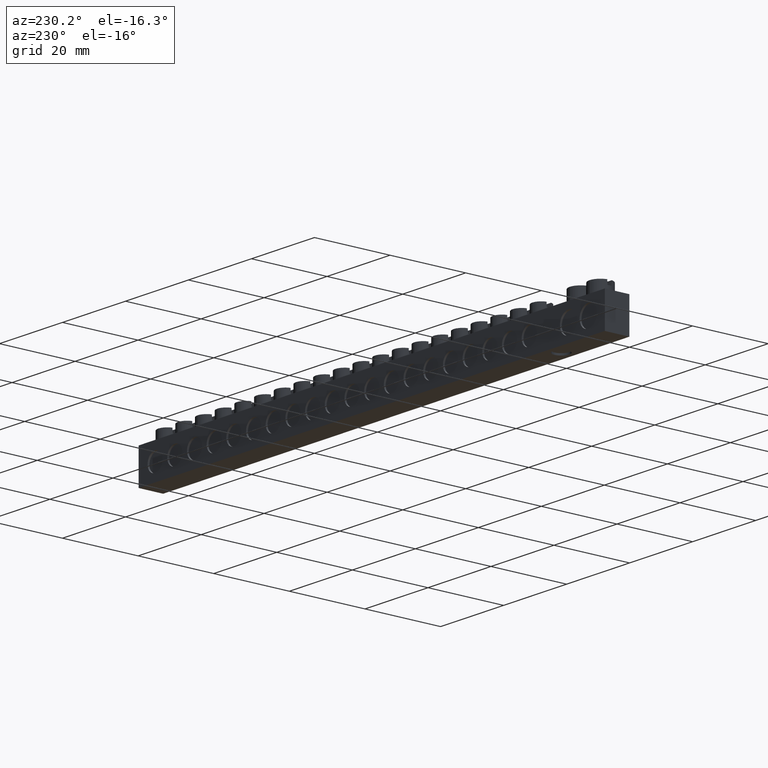
[diagram: clean part render]
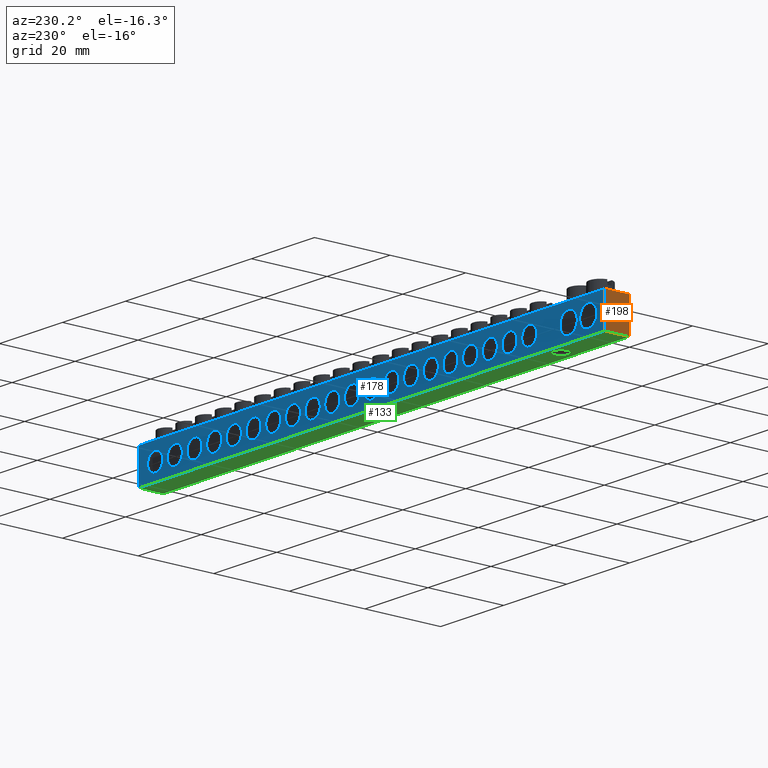
[diagram: same view with three faces highlighted in distinct colors, each labeled with its STEP entity id]
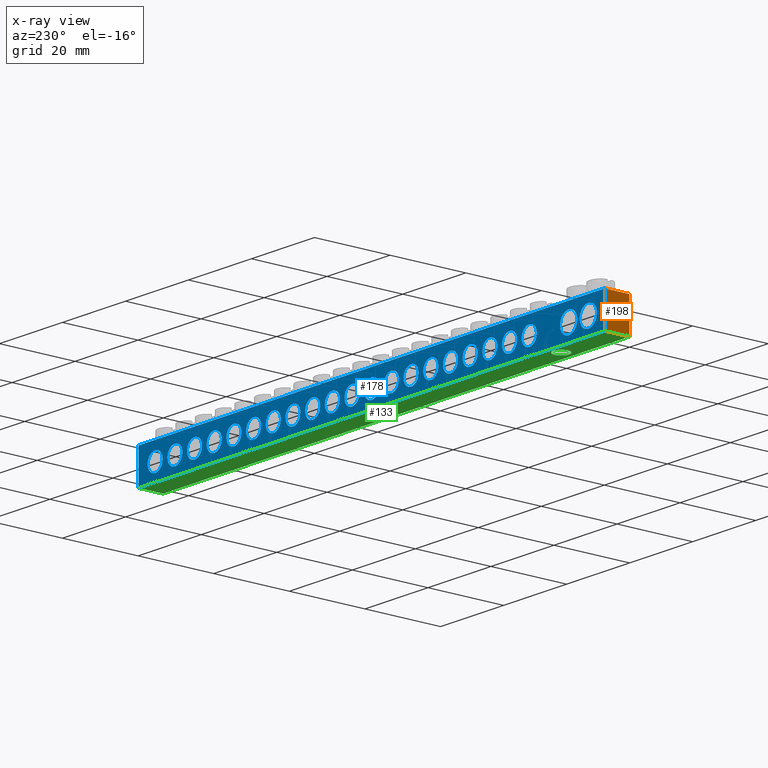
[diagram: x-ray of the same camera — body ghosted, the three highlighted faces saturated]
A machine part, auxiliary view with three faces highlighted in distinct colors.
The next image is the same camera in x-ray (body ghosted, the three faces saturated) — at least one of them is partly hidden behind the body in this view.
Their STEP definitions:

[orange] entity #198 — the highlighted planar face has unit normal (1, -0, 0).
#86 = EDGE_CURVE ( 'NONE', #12290, #12262, #11469, .T. ) ;
#137 = EDGE_CURVE ( 'NONE', #12290, #12310, #11507, .T. ) ;
#138 = EDGE_CURVE ( 'NONE', #12275, #12310, #11525, .T. ) ;
#139 = EDGE_CURVE ( 'NONE', #12275, #12262, #11503, .T. ) ;
#198 = ADVANCED_FACE ( 'NONE', ( #11855 ), #11931, .F. ) ;
#1559 = CARTESIAN_POINT ( 'NONE',  ( 0.05000000000000000300, 6.499999999999999100, 0.0000000000000000000 ) ) ;
#1586 = CARTESIAN_POINT ( 'NONE',  ( 0.05000000000000000300, 6.499999999999999100, 9.000000000000001800 ) ) ;
#1648 = CARTESIAN_POINT ( 'NONE',  ( 0.05000000000000000300, 0.0000000000000000000, 9.000000000000001800 ) ) ;
#1651 = CARTESIAN_POINT ( 'NONE',  ( 0.05000000000000000300, 0.0000000000000000000, 0.0000000000000000000 ) ) ;
#2633 = EDGE_LOOP ( 'NONE', ( #7815, #7874, #7864, #7794 ) ) ;
#7197 = AXIS2_PLACEMENT_3D ( 'NONE', #11928, #11885, #11891 ) ;
#7565 = VECTOR ( 'NONE', #11511, 1000.000000000000000 ) ;
#7580 = VECTOR ( 'NONE', #11458, 1000.000000000000000 ) ;
#7585 = VECTOR ( 'NONE', #11496, 1000.000000000000000 ) ;
#7589 = VECTOR ( 'NONE', #11498, 1000.000000000000000 ) ;
#7794 = ORIENTED_EDGE ( 'NONE', *, *, #86, .F. ) ;
#7815 = ORIENTED_EDGE ( 'NONE', *, *, #137, .T. ) ;
#7864 = ORIENTED_EDGE ( 'NONE', *, *, #139, .T. ) ;
#7874 = ORIENTED_EDGE ( 'NONE', *, *, #138, .F. ) ;
#11458 = DIRECTION ( 'NONE',  ( 0.0000000000000000000, 1.000000000000000000, 0.0000000000000000000 ) ) ;
#11469 = LINE ( 'NONE', #11479, #7580 ) ;
#11479 = CARTESIAN_POINT ( 'NONE',  ( 0.05000000000000000300, 0.0000000000000000000, 0.0000000000000000000 ) ) ;
#11481 = CARTESIAN_POINT ( 'NONE',  ( 0.05000000000000000300, 6.499999999999999100, 9.000000000000001800 ) ) ;
#11482 = CARTESIAN_POINT ( 'NONE',  ( 0.05000000000000000300, 6.499999999999999100, 9.000000000000001800 ) ) ;
#11496 = DIRECTION ( 'NONE',  ( 0.0000000000000000000, -1.000000000000000000, 0.0000000000000000000 ) ) ;
#11498 = DIRECTION ( 'NONE',  ( 0.0000000000000000000, 0.0000000000000000000, -1.000000000000000000 ) ) ;
#11503 = LINE ( 'NONE', #11482, #7589 ) ;
#11507 = LINE ( 'NONE', #11512, #7565 ) ;
#11511 = DIRECTION ( 'NONE',  ( 0.0000000000000000000, 0.0000000000000000000, 1.000000000000000000 ) ) ;
#11512 = CARTESIAN_POINT ( 'NONE',  ( 0.05000000000000000300, 0.0000000000000000000, 9.000000000000001800 ) ) ;
#11525 = LINE ( 'NONE', #11481, #7585 ) ;
#11855 = FACE_OUTER_BOUND ( 'NONE', #2633, .T. ) ;
#11885 = DIRECTION ( 'NONE',  ( 1.000000000000000000, -0.0000000000000000000, 0.0000000000000000000 ) ) ;
#11891 = DIRECTION ( 'NONE',  ( 0.0000000000000000000, 0.0000000000000000000, -1.000000000000000000 ) ) ;
#11928 = CARTESIAN_POINT ( 'NONE',  ( 0.05000000000000000300, 0.0000000000000000000, 9.000000000000001800 ) ) ;
#11931 = PLANE ( 'NONE',  #7197 ) ;
#12262 = VERTEX_POINT ( 'NONE', #1559 ) ;
#12275 = VERTEX_POINT ( 'NONE', #1586 ) ;
#12290 = VERTEX_POINT ( 'NONE', #1651 ) ;
#12310 = VERTEX_POINT ( 'NONE', #1648 ) ;

[blue] entity #178 — the highlighted planar face has unit normal (0, -1, 0).
#78 = EDGE_CURVE ( 'NONE', #12262, #12271, #11403, .T. ) ;
#128 = EDGE_CURVE ( 'NONE', #12281, #12275, #11464, .T. ) ;
#135 = EDGE_CURVE ( 'NONE', #12281, #12271, #11523, .T. ) ;
#139 = EDGE_CURVE ( 'NONE', #12275, #12262, #11503, .T. ) ;
#178 = ADVANCED_FACE ( 'NONE', ( #11723, #11728, #11702, #11743, #11686, #11726, #11722, #11694, #11740, #11707, #11724, #11725, #11741, #11687, #11733, #11734, #11695, #11718, #11704, #11697, #11742, #11706, #11716 ), #11689, .F. ) ;
#362 = CARTESIAN_POINT ( 'NONE',  ( 5.299999999999999800, 6.499999999999999100, 4.399999999999999500 ) ) ;
#395 = DIRECTION ( 'NONE',  ( 0.0000000000000000000, 1.000000000000000000, 0.0000000000000000000 ) ) ;
#396 = DIRECTION ( 'NONE',  ( 0.0000000000000000000, 1.000000000000000000, 0.0000000000000000000 ) ) ;
#409 = DIRECTION ( 'NONE',  ( 0.0000000000000000000, 1.000000000000000000, 0.0000000000000000000 ) ) ;
#410 = DIRECTION ( 'NONE',  ( 0.0000000000000000000, 0.0000000000000000000, -1.000000000000000000 ) ) ;
#414 = DIRECTION ( 'NONE',  ( 0.0000000000000000000, 0.0000000000000000000, -1.000000000000000000 ) ) ;
#417 = CARTESIAN_POINT ( 'NONE',  ( 117.8000000000000100, 6.500000000000000900, 4.399999999999940800 ) ) ;
#418 = DIRECTION ( 'NONE',  ( 0.0000000000000000000, 0.0000000000000000000, -1.000000000000000000 ) ) ;
#421 = CARTESIAN_POINT ( 'NONE',  ( 99.05000000000004000, 6.499999999999999100, 4.399999999999898200 ) ) ;
#426 = DIRECTION ( 'NONE',  ( 0.0000000000000000000, 0.0000000000000000000, -1.000000000000000000 ) ) ;
#431 = DIRECTION ( 'NONE',  ( 0.0000000000000000000, 1.000000000000000000, 0.0000000000000000000 ) ) ;
#434 = DIRECTION ( 'NONE',  ( 0.0000000000000000000, 0.0000000000000000000, -1.000000000000000000 ) ) ;
#441 = DIRECTION ( 'NONE',  ( 0.0000000000000000000, 1.000000000000000000, 0.0000000000000000000 ) ) ;
#445 = CARTESIAN_POINT ( 'NONE',  ( 86.55000000000005400, 6.499999999999999100, 4.399999999999868000 ) ) ;
#449 = DIRECTION ( 'NONE',  ( 0.0000000000000000000, 1.000000000000000000, 0.0000000000000000000 ) ) ;
#455 = DIRECTION ( 'NONE',  ( 0.0000000000000000000, 0.0000000000000000000, -1.000000000000000000 ) ) ;
#458 = CARTESIAN_POINT ( 'NONE',  ( 130.3000000000000400, 6.500000000000000900, 4.399999999999970200 ) ) ;
#460 = CARTESIAN_POINT ( 'NONE',  ( 92.80000000000005400, 6.499999999999999100, 4.399999999999883100 ) ) ;
#472 = CARTESIAN_POINT ( 'NONE',  ( 111.5500000000000300, 6.500000000000000900, 4.399999999999926600 ) ) ;
#473 = DIRECTION ( 'NONE',  ( 0.0000000000000000000, 0.0000000000000000000, -1.000000000000000000 ) ) ;
#481 = DIRECTION ( 'NONE',  ( 0.0000000000000000000, 1.000000000000000000, 0.0000000000000000000 ) ) ;
#501 = DIRECTION ( 'NONE',  ( 0.0000000000000000000, 1.000000000000000000, 0.0000000000000000000 ) ) ;
#502 = CARTESIAN_POINT ( 'NONE',  ( 142.7999999999999800, 6.500000000000000900, 4.399999999999999500 ) ) ;
#503 = DIRECTION ( 'NONE',  ( 0.0000000000000000000, 0.0000000000000000000, -1.000000000000000000 ) ) ;
#512 = DIRECTION ( 'NONE',  ( 0.0000000000000000000, 1.000000000000000000, 0.0000000000000000000 ) ) ;
#514 = DIRECTION ( 'NONE',  ( 0.0000000000000000000, 0.0000000000000000000, -1.000000000000000000 ) ) ;
#519 = CARTESIAN_POINT ( 'NONE',  ( 136.5500000000000100, 6.500000000000000900, 4.399999999999984400 ) ) ;
#523 = DIRECTION ( 'NONE',  ( 0.0000000000000000000, 0.0000000000000000000, -1.000000000000000000 ) ) ;
#532 = CARTESIAN_POINT ( 'NONE',  ( 11.55000000000000100, 6.499999999999999100, 4.399999999999999500 ) ) ;
#548 = DIRECTION ( 'NONE',  ( 0.0000000000000000000, 1.000000000000000000, 0.0000000000000000000 ) ) ;
#754 = DIRECTION ( 'NONE',  ( 0.0000000000000000000, 1.000000000000000000, 0.0000000000000000000 ) ) ;
#770 = DIRECTION ( 'NONE',  ( 0.0000000000000000000, 0.0000000000000000000, -1.000000000000000000 ) ) ;
#779 = CARTESIAN_POINT ( 'NONE',  ( 55.30000000000009700, 6.499999999999999100, 4.399999999999795200 ) ) ;
#788 = DIRECTION ( 'NONE',  ( 0.0000000000000000000, 0.0000000000000000000, -1.000000000000000000 ) ) ;
#792 = DIRECTION ( 'NONE',  ( 0.0000000000000000000, 1.000000000000000000, 0.0000000000000000000 ) ) ;
#793 = DIRECTION ( 'NONE',  ( 0.0000000000000000000, 1.000000000000000000, 0.0000000000000000000 ) ) ;
#794 = DIRECTION ( 'NONE',  ( 0.0000000000000000000, 0.0000000000000000000, -1.000000000000000000 ) ) ;
#796 = DIRECTION ( 'NONE',  ( 0.0000000000000000000, 1.000000000000000000, 0.0000000000000000000 ) ) ;
#798 = DIRECTION ( 'NONE',  ( 0.0000000000000000000, 1.000000000000000000, 0.0000000000000000000 ) ) ;
#799 = DIRECTION ( 'NONE',  ( 0.0000000000000000000, 0.0000000000000000000, -1.000000000000000000 ) ) ;
#801 = DIRECTION ( 'NONE',  ( 0.0000000000000000000, 0.0000000000000000000, -1.000000000000000000 ) ) ;
#802 = CARTESIAN_POINT ( 'NONE',  ( 86.55000000000005400, 6.499999999999999100, 4.399999999999868000 ) ) ;
#803 = CARTESIAN_POINT ( 'NONE',  ( 111.5500000000000300, 6.500000000000000900, 4.399999999999926600 ) ) ;
#806 = CARTESIAN_POINT ( 'NONE',  ( 80.30000000000006800, 6.499999999999999100, 4.399999999999853800 ) ) ;
#809 = DIRECTION ( 'NONE',  ( 0.0000000000000000000, 1.000000000000000000, 0.0000000000000000000 ) ) ;
#810 = CARTESIAN_POINT ( 'NONE',  ( 49.05000000000011100, 6.499999999999999100, 4.399999999999781900 ) ) ;
#815 = CARTESIAN_POINT ( 'NONE',  ( 117.8000000000000100, 6.500000000000000900, 4.399999999999940800 ) ) ;
#821 = DIRECTION ( 'NONE',  ( 0.0000000000000000000, 0.0000000000000000000, -1.000000000000000000 ) ) ;
#829 = CARTESIAN_POINT ( 'NONE',  ( 74.05000000000006800, 6.499999999999999100, 4.399999999999839600 ) ) ;
#833 = DIRECTION ( 'NONE',  ( 0.0000000000000000000, 1.000000000000000000, 0.0000000000000000000 ) ) ;
#834 = DIRECTION ( 'NONE',  ( 0.0000000000000000000, 0.0000000000000000000, -1.000000000000000000 ) ) ;
#835 = DIRECTION ( 'NONE',  ( 0.0000000000000000000, 1.000000000000000000, 0.0000000000000000000 ) ) ;
#840 = DIRECTION ( 'NONE',  ( 0.0000000000000000000, 0.0000000000000000000, -1.000000000000000000 ) ) ;
#843 = CARTESIAN_POINT ( 'NONE',  ( 99.05000000000004000, 6.499999999999999100, 4.399999999999898200 ) ) ;
#845 = CARTESIAN_POINT ( 'NONE',  ( 24.05000000000013900, 6.499999999999999100, 4.399999999999723200 ) ) ;
#848 = CARTESIAN_POINT ( 'NONE',  ( 30.30000000000013200, 6.499999999999999100, 4.399999999999737500 ) ) ;
#850 = DIRECTION ( 'NONE',  ( 0.0000000000000000000, 1.000000000000000000, 0.0000000000000000000 ) ) ;
#855 = DIRECTION ( 'NONE',  ( 0.0000000000000000000, 0.0000000000000000000, -1.000000000000000000 ) ) ;
#859 = DIRECTION ( 'NONE',  ( 0.0000000000000000000, 0.0000000000000000000, -1.000000000000000000 ) ) ;
#861 = DIRECTION ( 'NONE',  ( 0.0000000000000000000, 1.000000000000000000, 0.0000000000000000000 ) ) ;
#862 = DIRECTION ( 'NONE',  ( 0.0000000000000000000, 0.0000000000000000000, -1.000000000000000000 ) ) ;
#868 = CARTESIAN_POINT ( 'NONE',  ( 42.80000000000011800, 6.499999999999999100, 4.399999999999766800 ) ) ;
#880 = DIRECTION ( 'NONE',  ( 0.0000000000000000000, 1.000000000000000000, 0.0000000000000000000 ) ) ;
#881 = DIRECTION ( 'NONE',  ( 0.0000000000000000000, 1.000000000000000000, 0.0000000000000000000 ) ) ;
#886 = CARTESIAN_POINT ( 'NONE',  ( 61.55000000000009000, 6.499999999999999100, 4.399999999999810300 ) ) ;
#889 = DIRECTION ( 'NONE',  ( 0.0000000000000000000, 1.000000000000000000, 0.0000000000000000000 ) ) ;
#891 = DIRECTION ( 'NONE',  ( 0.0000000000000000000, 0.0000000000000000000, -1.000000000000000000 ) ) ;
#895 = CARTESIAN_POINT ( 'NONE',  ( 105.3000000000000300, 6.499999999999999100, 4.399999999999911500 ) ) ;
#896 = DIRECTION ( 'NONE',  ( 0.0000000000000000000, 0.0000000000000000000, -1.000000000000000000 ) ) ;
#904 = DIRECTION ( 'NONE',  ( 0.0000000000000000000, 1.000000000000000000, 0.0000000000000000000 ) ) ;
#908 = CARTESIAN_POINT ( 'NONE',  ( 36.55000000000012500, 6.499999999999999100, 4.399999999999753400 ) ) ;
#921 = DIRECTION ( 'NONE',  ( 0.0000000000000000000, 0.0000000000000000000, -1.000000000000000000 ) ) ;
#923 = CARTESIAN_POINT ( 'NONE',  ( 92.80000000000005400, 6.499999999999999100, 4.399999999999883100 ) ) ;
#945 = CARTESIAN_POINT ( 'NONE',  ( 67.80000000000008200, 6.499999999999999100, 4.399999999999825400 ) ) ;
#949 = DIRECTION ( 'NONE',  ( 0.0000000000000000000, 0.0000000000000000000, -1.000000000000000000 ) ) ;
#958 = DIRECTION ( 'NONE',  ( 0.0000000000000000000, 1.000000000000000000, 0.0000000000000000000 ) ) ;
#961 = CARTESIAN_POINT ( 'NONE',  ( 124.0500000000000100, 6.500000000000000900, 4.399999999999955900 ) ) ;
#962 = DIRECTION ( 'NONE',  ( 0.0000000000000000000, 1.000000000000000000, 0.0000000000000000000 ) ) ;
#969 = DIRECTION ( 'NONE',  ( 0.0000000000000000000, 1.000000000000000000, 0.0000000000000000000 ) ) ;
#971 = DIRECTION ( 'NONE',  ( 0.0000000000000000000, 0.0000000000000000000, -1.000000000000000000 ) ) ;
#975 = DIRECTION ( 'NONE',  ( 0.0000000000000000000, 0.0000000000000000000, -1.000000000000000000 ) ) ;
#989 = CARTESIAN_POINT ( 'NONE',  ( 136.5500000000000100, 6.500000000000000900, 4.399999999999984400 ) ) ;
#991 = DIRECTION ( 'NONE',  ( 0.0000000000000000000, 0.0000000000000000000, -1.000000000000000000 ) ) ;
#994 = DIRECTION ( 'NONE',  ( 0.0000000000000000000, 1.000000000000000000, 0.0000000000000000000 ) ) ;
#1009 = DIRECTION ( 'NONE',  ( 0.0000000000000000000, 1.000000000000000000, 0.0000000000000000000 ) ) ;
#1011 = CARTESIAN_POINT ( 'NONE',  ( 130.3000000000000400, 6.500000000000000900, 4.399999999999970200 ) ) ;
#1012 = DIRECTION ( 'NONE',  ( 0.0000000000000000000, 1.000000000000000000, 0.0000000000000000000 ) ) ;
#1015 = DIRECTION ( 'NONE',  ( 0.0000000000000000000, 0.0000000000000000000, -1.000000000000000000 ) ) ;
#1021 = CARTESIAN_POINT ( 'NONE',  ( 5.299999999999999800, 6.499999999999999100, 4.399999999999999500 ) ) ;
#1038 = DIRECTION ( 'NONE',  ( 0.0000000000000000000, 0.0000000000000000000, -1.000000000000000000 ) ) ;
#1082 = CARTESIAN_POINT ( 'NONE',  ( 142.7999999999999800, 6.500000000000000900, 4.399999999999999500 ) ) ;
#1096 = DIRECTION ( 'NONE',  ( 0.0000000000000000000, 1.000000000000000000, 0.0000000000000000000 ) ) ;
#1104 = CARTESIAN_POINT ( 'NONE',  ( 11.55000000000000100, 6.499999999999999100, 4.399999999999999500 ) ) ;
#1105 = DIRECTION ( 'NONE',  ( 0.0000000000000000000, 0.0000000000000000000, -1.000000000000000000 ) ) ;
#1135 = DIRECTION ( 'NONE',  ( 0.0000000000000000000, 1.000000000000000000, 0.0000000000000000000 ) ) ;
#1157 = DIRECTION ( 'NONE',  ( 0.0000000000000000000, 0.0000000000000000000, -1.000000000000000000 ) ) ;
#1555 = CARTESIAN_POINT ( 'NONE',  ( 148.0500000000000100, 6.499999999999999100, 0.0000000000000000000 ) ) ;
#1559 = CARTESIAN_POINT ( 'NONE',  ( 0.05000000000000000300, 6.499999999999999100, 0.0000000000000000000 ) ) ;
#1565 = CARTESIAN_POINT ( 'NONE',  ( 148.0500000000000100, 6.500000000000000000, 9.000000000000001800 ) ) ;
#1586 = CARTESIAN_POINT ( 'NONE',  ( 0.05000000000000000300, 6.499999999999999100, 9.000000000000001800 ) ) ;
#2621 = EDGE_LOOP ( 'NONE', ( #7833, #7820 ) ) ;
#2623 = EDGE_LOOP ( 'NONE', ( #7822, #7849 ) ) ;
#2626 = EDGE_LOOP ( 'NONE', ( #7870, #7858, #7816, #7795 ) ) ;
#2632 = EDGE_LOOP ( 'NONE', ( #7828, #7826 ) ) ;
#2649 = EDGE_LOOP ( 'NONE', ( #7807, #7837 ) ) ;
#2670 = EDGE_LOOP ( 'NONE', ( #7752, #7821 ) ) ;
#2674 = EDGE_LOOP ( 'NONE', ( #7772, #7838 ) ) ;
#2685 = EDGE_LOOP ( 'NONE', ( #7787, #7817 ) ) ;
#2689 = EDGE_LOOP ( 'NONE', ( #7924, #7901 ) ) ;
#2690 = EDGE_LOOP ( 'NONE', ( #7908, #7931 ) ) ;
#2695 = EDGE_LOOP ( 'NONE', ( #7919, #7918 ) ) ;
#2699 = EDGE_LOOP ( 'NONE', ( #7836, #7819 ) ) ;
#2700 = EDGE_LOOP ( 'NONE', ( #7862, #7780 ) ) ;
#2701 = EDGE_LOOP ( 'NONE', ( #7886, #7881 ) ) ;
#2703 = EDGE_LOOP ( 'NONE', ( #7907, #7904 ) ) ;
#2717 = EDGE_LOOP ( 'NONE', ( #7859, #7786 ) ) ;
#2727 = EDGE_LOOP ( 'NONE', ( #7808, #7872 ) ) ;
#2728 = EDGE_LOOP ( 'NONE', ( #7823, #7867 ) ) ;
#2749 = EDGE_LOOP ( 'NONE', ( #7754, #7869 ) ) ;
#2751 = EDGE_LOOP ( 'NONE', ( #7871, #7855 ) ) ;
#2757 = EDGE_LOOP ( 'NONE', ( #7773, #7865 ) ) ;
#2758 = EDGE_LOOP ( 'NONE', ( #7876, #7774 ) ) ;
#2777 = EDGE_LOOP ( 'NONE', ( #7929, #7906 ) ) ;
#5112 = AXIS2_PLACEMENT_3D ( 'NONE', #1082, #1096, #1105 ) ;
#5128 = CIRCLE ( 'NONE', #5153, 2.400000000000002600 ) ;
#5142 = CIRCLE ( 'NONE', #5143, 2.749999999999997300 ) ;
#5143 = AXIS2_PLACEMENT_3D ( 'NONE', #1021, #1009, #991 ) ;
#5150 = CIRCLE ( 'NONE', #5151, 2.400000000000002600 ) ;
#5151 = AXIS2_PLACEMENT_3D ( 'NONE', #989, #994, #1015 ) ;
#5153 = AXIS2_PLACEMENT_3D ( 'NONE', #1011, #1012, #1038 ) ;
#5157 = CIRCLE ( 'NONE', #5112, 2.400000000000002600 ) ;
#5173 = AXIS2_PLACEMENT_3D ( 'NONE', #1104, #1135, #1157 ) ;
#5202 = CIRCLE ( 'NONE', #5173, 2.749999999999998200 ) ;
#6003 = CIRCLE ( 'NONE', #6021, 2.400000000000000800 ) ;
#6007 = CIRCLE ( 'NONE', #6032, 2.400000000000000800 ) ;
#6011 = AXIS2_PLACEMENT_3D ( 'NONE', #908, #904, #921 ) ;
#6021 = AXIS2_PLACEMENT_3D ( 'NONE', #868, #880, #891 ) ;
#6022 = AXIS2_PLACEMENT_3D ( 'NONE', #886, #889, #896 ) ;
#6032 = AXIS2_PLACEMENT_3D ( 'NONE', #895, #881, #862 ) ;
#6033 = CIRCLE ( 'NONE', #6058, 2.400000000000000800 ) ;
#6034 = CIRCLE ( 'NONE', #6057, 2.400000000000000800 ) ;
#6042 = CIRCLE ( 'NONE', #6022, 2.400000000000000800 ) ;
#6049 = CIRCLE ( 'NONE', #6011, 2.400000000000000800 ) ;
#6057 = AXIS2_PLACEMENT_3D ( 'NONE', #923, #958, #949 ) ;
#6058 = AXIS2_PLACEMENT_3D ( 'NONE', #945, #962, #975 ) ;
#6202 = CIRCLE ( 'NONE', #6240, 2.399999999999987500 ) ;
#6231 = AXIS2_PLACEMENT_3D ( 'NONE', #421, #395, #418 ) ;
#6240 = AXIS2_PLACEMENT_3D ( 'NONE', #961, #969, #971 ) ;
#6244 = CIRCLE ( 'NONE', #6256, 2.400000000000002600 ) ;
#6246 = AXIS2_PLACEMENT_3D ( 'NONE', #362, #409, #410 ) ;
#6248 = CIRCLE ( 'NONE', #6231, 2.400000000000000800 ) ;
#6255 = AXIS2_PLACEMENT_3D ( 'NONE', #417, #396, #414 ) ;
#6256 = AXIS2_PLACEMENT_3D ( 'NONE', #458, #441, #455 ) ;
#6265 = CIRCLE ( 'NONE', #6246, 2.749999999999997300 ) ;
#6275 = CIRCLE ( 'NONE', #6255, 2.400000000000000800 ) ;
#6286 = AXIS2_PLACEMENT_3D ( 'NONE', #460, #449, #426 ) ;
#6288 = AXIS2_PLACEMENT_3D ( 'NONE', #502, #481, #503 ) ;
#6295 = CIRCLE ( 'NONE', #6321, 2.400000000000000800 ) ;
#6312 = AXIS2_PLACEMENT_3D ( 'NONE', #519, #512, #514 ) ;
#6315 = AXIS2_PLACEMENT_3D ( 'NONE', #532, #548, #523 ) ;
#6319 = CIRCLE ( 'NONE', #6336, 2.400000000000000800 ) ;
#6321 = AXIS2_PLACEMENT_3D ( 'NONE', #445, #431, #434 ) ;
#6323 = CIRCLE ( 'NONE', #6315, 2.749999999999998200 ) ;
#6335 = CIRCLE ( 'NONE', #6288, 2.400000000000002600 ) ;
#6336 = AXIS2_PLACEMENT_3D ( 'NONE', #472, #501, #473 ) ;
#6338 = CIRCLE ( 'NONE', #6286, 2.400000000000000800 ) ;
#6339 = CIRCLE ( 'NONE', #6312, 2.400000000000002600 ) ;
#6472 = CIRCLE ( 'NONE', #6529, 2.400000000000000800 ) ;
#6473 = AXIS2_PLACEMENT_3D ( 'NONE', #848, #850, #859 ) ;
#6478 = AXIS2_PLACEMENT_3D ( 'NONE', #843, #861, #855 ) ;
#6481 = CIRCLE ( 'NONE', #6503, 2.400000000000000800 ) ;
#6487 = AXIS2_PLACEMENT_3D ( 'NONE', #806, #792, #821 ) ;
#6497 = AXIS2_PLACEMENT_3D ( 'NONE', #815, #793, #794 ) ;
#6498 = CIRCLE ( 'NONE', #6501, 2.400000000000000800 ) ;
#6501 = AXIS2_PLACEMENT_3D ( 'NONE', #803, #809, #788 ) ;
#6503 = AXIS2_PLACEMENT_3D ( 'NONE', #810, #796, #801 ) ;
#6507 = CIRCLE ( 'NONE', #6520, 2.400000000000001200 ) ;
#6512 = AXIS2_PLACEMENT_3D ( 'NONE', #802, #798, #799 ) ;
#6513 = CIRCLE ( 'NONE', #6497, 2.400000000000000800 ) ;
#6514 = CIRCLE ( 'NONE', #6478, 2.400000000000000800 ) ;
#6520 = AXIS2_PLACEMENT_3D ( 'NONE', #845, #833, #834 ) ;
#6526 = CIRCLE ( 'NONE', #6512, 2.400000000000000800 ) ;
#6527 = CIRCLE ( 'NONE', #6487, 2.400000000000000800 ) ;
#6528 = CIRCLE ( 'NONE', #6473, 2.400000000000000800 ) ;
#6529 = AXIS2_PLACEMENT_3D ( 'NONE', #779, #754, #770 ) ;
#6532 = CIRCLE ( 'NONE', #6533, 2.400000000000000800 ) ;
#6533 = AXIS2_PLACEMENT_3D ( 'NONE', #829, #835, #840 ) ;
#6714 = EDGE_CURVE ( 'NONE', #8602, #8557, #13714, .T. ) ;
#6967 = DIRECTION ( 'NONE',  ( 0.0000000000000000000, 0.0000000000000000000, -1.000000000000000000 ) ) ;
#6985 = CARTESIAN_POINT ( 'NONE',  ( 24.05000000000013900, 6.499999999999999100, 4.399999999999723200 ) ) ;
#6995 = DIRECTION ( 'NONE',  ( 0.0000000000000000000, 1.000000000000000000, 0.0000000000000000000 ) ) ;
#7173 = AXIS2_PLACEMENT_3D ( 'NONE', #11708, #11696, #11729 ) ;
#7529 = VECTOR ( 'NONE', #11406, 1000.000000000000000 ) ;
#7567 = VECTOR ( 'NONE', #11522, 1000.000000000000000 ) ;
#7587 = VECTOR ( 'NONE', #11505, 1000.000000000000000 ) ;
#7589 = VECTOR ( 'NONE', #11498, 1000.000000000000000 ) ;
#7667 = EDGE_CURVE ( 'NONE', #8586, #8637, #13784, .T. ) ;
#7752 = ORIENTED_EDGE ( 'NONE', *, *, #9648, .F. ) ;
#7754 = ORIENTED_EDGE ( 'NONE', *, *, #10100, .F. ) ;
#7772 = ORIENTED_EDGE ( 'NONE', *, *, #10110, .F. ) ;
#7773 = ORIENTED_EDGE ( 'NONE', *, *, #10096, .F. ) ;
#7774 = ORIENTED_EDGE ( 'NONE', *, *, #10214, .F. ) ;
#7780 = ORIENTED_EDGE ( 'NONE', *, *, #10231, .F. ) ;
#7786 = ORIENTED_EDGE ( 'NONE', *, *, #10262, .F. ) ;
#7787 = ORIENTED_EDGE ( 'NONE', *, *, #9688, .F. ) ;
#7795 = ORIENTED_EDGE ( 'NONE', *, *, #78, .F. ) ;
#7807 = ORIENTED_EDGE ( 'NONE', *, *, #10090, .F. ) ;
#7808 = ORIENTED_EDGE ( 'NONE', *, *, #10127, .F. ) ;
#7816 = ORIENTED_EDGE ( 'NONE', *, *, #135, .T. ) ;
#7817 = ORIENTED_EDGE ( 'NONE', *, *, #10245, .F. ) ;
#7819 = ORIENTED_EDGE ( 'NONE', *, *, #10222, .F. ) ;
#7820 = ORIENTED_EDGE ( 'NONE', *, *, #10318, .F. ) ;
#7821 = ORIENTED_EDGE ( 'NONE', *, *, #10236, .F. ) ;
#7822 = ORIENTED_EDGE ( 'NONE', *, *, #10109, .F. ) ;
#7823 = ORIENTED_EDGE ( 'NONE', *, *, #9679, .F. ) ;
#7826 = ORIENTED_EDGE ( 'NONE', *, *, #10279, .F. ) ;
#7828 = ORIENTED_EDGE ( 'NONE', *, *, #10074, .F. ) ;
#7833 = ORIENTED_EDGE ( 'NONE', *, *, #10124, .F. ) ;
#7836 = ORIENTED_EDGE ( 'NONE', *, *, #10075, .F. ) ;
#7837 = ORIENTED_EDGE ( 'NONE', *, *, #10289, .F. ) ;
#7838 = ORIENTED_EDGE ( 'NONE', *, *, #10220, .F. ) ;
#7849 = ORIENTED_EDGE ( 'NONE', *, *, #10312, .F. ) ;
#7855 = ORIENTED_EDGE ( 'NONE', *, *, #10227, .F. ) ;
#7858 = ORIENTED_EDGE ( 'NONE', *, *, #128, .F. ) ;
#7859 = ORIENTED_EDGE ( 'NONE', *, *, #9686, .F. ) ;
#7862 = ORIENTED_EDGE ( 'NONE', *, *, #9638, .F. ) ;
#7865 = ORIENTED_EDGE ( 'NONE', *, *, #10261, .F. ) ;
#7867 = ORIENTED_EDGE ( 'NONE', *, *, #10273, .F. ) ;
#7869 = ORIENTED_EDGE ( 'NONE', *, *, #10216, .F. ) ;
#7870 = ORIENTED_EDGE ( 'NONE', *, *, #139, .F. ) ;
#7871 = ORIENTED_EDGE ( 'NONE', *, *, #10078, .F. ) ;
#7872 = ORIENTED_EDGE ( 'NONE', *, *, #10281, .F. ) ;
#7876 = ORIENTED_EDGE ( 'NONE', *, *, #9642, .F. ) ;
#7881 = ORIENTED_EDGE ( 'NONE', *, *, #10224, .F. ) ;
#7886 = ORIENTED_EDGE ( 'NONE', *, *, #6714, .F. ) ;
#7901 = ORIENTED_EDGE ( 'NONE', *, *, #10229, .F. ) ;
#7904 = ORIENTED_EDGE ( 'NONE', *, *, #10237, .F. ) ;
#7906 = ORIENTED_EDGE ( 'NONE', *, *, #10206, .F. ) ;
#7907 = ORIENTED_EDGE ( 'NONE', *, *, #9643, .F. ) ;
#7908 = ORIENTED_EDGE ( 'NONE', *, *, #9680, .F. ) ;
#7918 = ORIENTED_EDGE ( 'NONE', *, *, #10211, .F. ) ;
#7919 = ORIENTED_EDGE ( 'NONE', *, *, #9651, .F. ) ;
#7924 = ORIENTED_EDGE ( 'NONE', *, *, #7667, .F. ) ;
#7929 = ORIENTED_EDGE ( 'NONE', *, *, #9630, .F. ) ;
#7931 = ORIENTED_EDGE ( 'NONE', *, *, #10253, .F. ) ;
#8424 = VERTEX_POINT ( 'NONE', #10629 ) ;
#8455 = VERTEX_POINT ( 'NONE', #10661 ) ;
#8467 = VERTEX_POINT ( 'NONE', #10656 ) ;
#8469 = VERTEX_POINT ( 'NONE', #10666 ) ;
#8478 = VERTEX_POINT ( 'NONE', #10676 ) ;
#8480 = VERTEX_POINT ( 'NONE', #10691 ) ;
#8481 = VERTEX_POINT ( 'NONE', #10703 ) ;
#8484 = VERTEX_POINT ( 'NONE', #10655 ) ;
#8486 = VERTEX_POINT ( 'NONE', #10680 ) ;
#8488 = VERTEX_POINT ( 'NONE', #10696 ) ;
#8489 = VERTEX_POINT ( 'NONE', #10705 ) ;
#8491 = VERTEX_POINT ( 'NONE', #10664 ) ;
#8493 = VERTEX_POINT ( 'NONE', #10697 ) ;
#8494 = VERTEX_POINT ( 'NONE', #10668 ) ;
#8497 = VERTEX_POINT ( 'NONE', #10699 ) ;
#8498 = VERTEX_POINT ( 'NONE', #10677 ) ;
#8505 = VERTEX_POINT ( 'NONE', #10719 ) ;
#8513 = VERTEX_POINT ( 'NONE', #10718 ) ;
#8520 = VERTEX_POINT ( 'NONE', #10752 ) ;
#8523 = VERTEX_POINT ( 'NONE', #10764 ) ;
#8526 = VERTEX_POINT ( 'NONE', #10755 ) ;
#8527 = VERTEX_POINT ( 'NONE', #10730 ) ;
#8529 = VERTEX_POINT ( 'NONE', #10748 ) ;
#8530 = VERTEX_POINT ( 'NONE', #10743 ) ;
#8534 = VERTEX_POINT ( 'NONE', #10756 ) ;
#8537 = VERTEX_POINT ( 'NONE', #10765 ) ;
#8542 = VERTEX_POINT ( 'NONE', #10716 ) ;
#8548 = VERTEX_POINT ( 'NONE', #10710 ) ;
#8549 = VERTEX_POINT ( 'NONE', #10717 ) ;
#8553 = VERTEX_POINT ( 'NONE', #10726 ) ;
#8556 = VERTEX_POINT ( 'NONE', #10733 ) ;
#8557 = VERTEX_POINT ( 'NONE', #10734 ) ;
#8563 = VERTEX_POINT ( 'NONE', #10740 ) ;
#8564 = VERTEX_POINT ( 'NONE', #10741 ) ;
#8568 = VERTEX_POINT ( 'NONE', #10790 ) ;
#8569 = VERTEX_POINT ( 'NONE', #10404 ) ;
#8571 = VERTEX_POINT ( 'NONE', #10433 ) ;
#8572 = VERTEX_POINT ( 'NONE', #9371 ) ;
#8575 = VERTEX_POINT ( 'NONE', #9372 ) ;
#8577 = VERTEX_POINT ( 'NONE', #9353 ) ;
#8578 = VERTEX_POINT ( 'NONE', #9354 ) ;
#8586 = VERTEX_POINT ( 'NONE', #9359 ) ;
#8602 = VERTEX_POINT ( 'NONE', #9394 ) ;
#8637 = VERTEX_POINT ( 'NONE', #9382 ) ;
#9179 = DIRECTION ( 'NONE',  ( 0.0000000000000000000, 1.000000000000000000, 0.0000000000000000000 ) ) ;
#9180 = DIRECTION ( 'NONE',  ( 0.0000000000000000000, 0.0000000000000000000, -1.000000000000000000 ) ) ;
#9186 = CARTESIAN_POINT ( 'NONE',  ( 124.0500000000000100, 6.500000000000000900, 4.399999999999955900 ) ) ;
#9187 = DIRECTION ( 'NONE',  ( 0.0000000000000000000, 0.0000000000000000000, -1.000000000000000000 ) ) ;
#9192 = DIRECTION ( 'NONE',  ( 0.0000000000000000000, 1.000000000000000000, 0.0000000000000000000 ) ) ;
#9196 = CARTESIAN_POINT ( 'NONE',  ( 36.55000000000012500, 6.499999999999999100, 4.399999999999753400 ) ) ;
#9214 = DIRECTION ( 'NONE',  ( 0.0000000000000000000, 1.000000000000000000, 0.0000000000000000000 ) ) ;
#9217 = DIRECTION ( 'NONE',  ( 0.0000000000000000000, 0.0000000000000000000, -1.000000000000000000 ) ) ;
#9229 = DIRECTION ( 'NONE',  ( 0.0000000000000000000, 0.0000000000000000000, -1.000000000000000000 ) ) ;
#9233 = CARTESIAN_POINT ( 'NONE',  ( 67.80000000000008200, 6.499999999999999100, 4.399999999999825400 ) ) ;
#9240 = DIRECTION ( 'NONE',  ( 0.0000000000000000000, 1.000000000000000000, 0.0000000000000000000 ) ) ;
#9255 = CARTESIAN_POINT ( 'NONE',  ( 61.55000000000009000, 6.499999999999999100, 4.399999999999810300 ) ) ;
#9353 = CARTESIAN_POINT ( 'NONE',  ( 99.05000000000004000, 6.499999999999999100, 1.999999999999897200 ) ) ;
#9354 = CARTESIAN_POINT ( 'NONE',  ( 80.30000000000006800, 6.499999999999999100, 6.799999999999855000 ) ) ;
#9359 = CARTESIAN_POINT ( 'NONE',  ( 30.30000000000013200, 6.499999999999999100, 1.999999999999736900 ) ) ;
#9371 = CARTESIAN_POINT ( 'NONE',  ( 49.05000000000011100, 6.499999999999999100, 6.799999999999782200 ) ) ;
#9372 = CARTESIAN_POINT ( 'NONE',  ( 86.55000000000005400, 6.499999999999999100, 6.799999999999868400 ) ) ;
#9382 = CARTESIAN_POINT ( 'NONE',  ( 30.30000000000013200, 6.499999999999999100, 6.799999999999738700 ) ) ;
#9394 = CARTESIAN_POINT ( 'NONE',  ( 24.05000000000013900, 6.499999999999999100, 1.999999999999722400 ) ) ;
#9494 = DIRECTION ( 'NONE',  ( 0.0000000000000000000, 0.0000000000000000000, -1.000000000000000000 ) ) ;
#9496 = DIRECTION ( 'NONE',  ( 0.0000000000000000000, 1.000000000000000000, 0.0000000000000000000 ) ) ;
#9504 = CARTESIAN_POINT ( 'NONE',  ( 55.30000000000009700, 6.499999999999999100, 4.399999999999795200 ) ) ;
#9550 = CARTESIAN_POINT ( 'NONE',  ( 105.3000000000000300, 6.499999999999999100, 4.399999999999911500 ) ) ;
#9552 = DIRECTION ( 'NONE',  ( 0.0000000000000000000, 1.000000000000000000, 0.0000000000000000000 ) ) ;
#9554 = DIRECTION ( 'NONE',  ( 0.0000000000000000000, 0.0000000000000000000, -1.000000000000000000 ) ) ;
#9556 = DIRECTION ( 'NONE',  ( 0.0000000000000000000, 0.0000000000000000000, -1.000000000000000000 ) ) ;
#9560 = CARTESIAN_POINT ( 'NONE',  ( 42.80000000000011800, 6.499999999999999100, 4.399999999999766800 ) ) ;
#9567 = CARTESIAN_POINT ( 'NONE',  ( 80.30000000000006800, 6.499999999999999100, 4.399999999999853800 ) ) ;
#9572 = DIRECTION ( 'NONE',  ( 0.0000000000000000000, 0.0000000000000000000, -1.000000000000000000 ) ) ;
#9576 = DIRECTION ( 'NONE',  ( 0.0000000000000000000, 1.000000000000000000, 0.0000000000000000000 ) ) ;
#9578 = DIRECTION ( 'NONE',  ( 0.0000000000000000000, 1.000000000000000000, 0.0000000000000000000 ) ) ;
#9579 = CARTESIAN_POINT ( 'NONE',  ( 74.05000000000006800, 6.499999999999999100, 4.399999999999839600 ) ) ;
#9583 = DIRECTION ( 'NONE',  ( 0.0000000000000000000, 1.000000000000000000, 0.0000000000000000000 ) ) ;
#9589 = DIRECTION ( 'NONE',  ( 0.0000000000000000000, 0.0000000000000000000, -1.000000000000000000 ) ) ;
#9602 = CARTESIAN_POINT ( 'NONE',  ( 49.05000000000011100, 6.499999999999999100, 4.399999999999781900 ) ) ;
#9607 = DIRECTION ( 'NONE',  ( 0.0000000000000000000, 1.000000000000000000, 0.0000000000000000000 ) ) ;
#9612 = DIRECTION ( 'NONE',  ( 0.0000000000000000000, 0.0000000000000000000, -1.000000000000000000 ) ) ;
#9630 = EDGE_CURVE ( 'NONE', #8526, #8523, #13878, .T. ) ;
#9638 = EDGE_CURVE ( 'NONE', #8497, #8520, #13875, .T. ) ;
#9642 = EDGE_CURVE ( 'NONE', #8537, #8578, #13902, .T. ) ;
#9643 = EDGE_CURVE ( 'NONE', #8491, #8542, #13916, .T. ) ;
#9648 = EDGE_CURVE ( 'NONE', #8569, #8548, #13880, .T. ) ;
#9651 = EDGE_CURVE ( 'NONE', #8481, #8572, #13879, .T. ) ;
#9679 = EDGE_CURVE ( 'NONE', #8493, #8489, #13934, .T. ) ;
#9680 = EDGE_CURVE ( 'NONE', #8484, #8553, #13979, .T. ) ;
#9686 = EDGE_CURVE ( 'NONE', #8469, #8530, #13981, .T. ) ;
#9688 = EDGE_CURVE ( 'NONE', #8527, #8563, #13986, .T. ) ;
#10074 = EDGE_CURVE ( 'NONE', #8424, #8467, #6265, .T. ) ;
#10075 = EDGE_CURVE ( 'NONE', #8564, #8488, #6275, .T. ) ;
#10078 = EDGE_CURVE ( 'NONE', #8577, #8494, #6248, .T. ) ;
#10090 = EDGE_CURVE ( 'NONE', #8571, #8478, #6244, .T. ) ;
#10096 = EDGE_CURVE ( 'NONE', #8486, #8549, #6338, .T. ) ;
#10100 = EDGE_CURVE ( 'NONE', #8556, #8575, #6295, .T. ) ;
#10109 = EDGE_CURVE ( 'NONE', #8505, #8455, #6335, .T. ) ;
#10110 = EDGE_CURVE ( 'NONE', #8529, #8568, #6319, .T. ) ;
#10124 = EDGE_CURVE ( 'NONE', #8480, #8513, #6323, .T. ) ;
#10127 = EDGE_CURVE ( 'NONE', #8498, #8534, #6339, .T. ) ;
#10206 = EDGE_CURVE ( 'NONE', #8523, #8526, #6472, .T. ) ;
#10211 = EDGE_CURVE ( 'NONE', #8572, #8481, #6481, .T. ) ;
#10214 = EDGE_CURVE ( 'NONE', #8578, #8537, #6527, .T. ) ;
#10216 = EDGE_CURVE ( 'NONE', #8575, #8556, #6526, .T. ) ;
#10220 = EDGE_CURVE ( 'NONE', #8568, #8529, #6498, .T. ) ;
#10222 = EDGE_CURVE ( 'NONE', #8488, #8564, #6513, .T. ) ;
#10224 = EDGE_CURVE ( 'NONE', #8557, #8602, #6507, .T. ) ;
#10227 = EDGE_CURVE ( 'NONE', #8494, #8577, #6514, .T. ) ;
#10229 = EDGE_CURVE ( 'NONE', #8637, #8586, #6528, .T. ) ;
#10231 = EDGE_CURVE ( 'NONE', #8520, #8497, #6532, .T. ) ;
#10236 = EDGE_CURVE ( 'NONE', #8548, #8569, #6007, .T. ) ;
#10237 = EDGE_CURVE ( 'NONE', #8542, #8491, #6003, .T. ) ;
#10245 = EDGE_CURVE ( 'NONE', #8563, #8527, #6042, .T. ) ;
#10253 = EDGE_CURVE ( 'NONE', #8553, #8484, #6049, .T. ) ;
#10261 = EDGE_CURVE ( 'NONE', #8549, #8486, #6034, .T. ) ;
#10262 = EDGE_CURVE ( 'NONE', #8530, #8469, #6033, .T. ) ;
#10273 = EDGE_CURVE ( 'NONE', #8489, #8493, #6202, .T. ) ;
#10279 = EDGE_CURVE ( 'NONE', #8467, #8424, #5142, .T. ) ;
#10281 = EDGE_CURVE ( 'NONE', #8534, #8498, #5150, .T. ) ;
#10289 = EDGE_CURVE ( 'NONE', #8478, #8571, #5128, .T. ) ;
#10312 = EDGE_CURVE ( 'NONE', #8455, #8505, #5157, .T. ) ;
#10318 = EDGE_CURVE ( 'NONE', #8513, #8480, #5202, .T. ) ;
#10404 = CARTESIAN_POINT ( 'NONE',  ( 105.3000000000000300, 6.499999999999999100, 1.999999999999911200 ) ) ;
#10433 = CARTESIAN_POINT ( 'NONE',  ( 130.3000000000000400, 6.500000000000000900, 1.999999999999967600 ) ) ;
#10629 = CARTESIAN_POINT ( 'NONE',  ( 5.299999999999999800, 6.499999999999999100, 1.650000000000002100 ) ) ;
#10655 = CARTESIAN_POINT ( 'NONE',  ( 36.55000000000012500, 6.499999999999999100, 1.999999999999752400 ) ) ;
#10656 = CARTESIAN_POINT ( 'NONE',  ( 5.299999999999999800, 6.499999999999999100, 7.149999999999996800 ) ) ;
#10661 = CARTESIAN_POINT ( 'NONE',  ( 142.7999999999999800, 6.500000000000000900, 6.800000000000002500 ) ) ;
#10664 = CARTESIAN_POINT ( 'NONE',  ( 42.80000000000011800, 6.499999999999999100, 1.999999999999766200 ) ) ;
#10666 = CARTESIAN_POINT ( 'NONE',  ( 67.80000000000008200, 6.499999999999999100, 1.999999999999824400 ) ) ;
#10668 = CARTESIAN_POINT ( 'NONE',  ( 99.05000000000004000, 6.499999999999999100, 6.799999999999898600 ) ) ;
#10676 = CARTESIAN_POINT ( 'NONE',  ( 130.3000000000000400, 6.500000000000000900, 6.799999999999972300 ) ) ;
#10677 = CARTESIAN_POINT ( 'NONE',  ( 136.5500000000000100, 6.500000000000000900, 1.999999999999982200 ) ) ;
#10680 = CARTESIAN_POINT ( 'NONE',  ( 92.80000000000005400, 6.499999999999999100, 1.999999999999882500 ) ) ;
#10691 = CARTESIAN_POINT ( 'NONE',  ( 11.55000000000000100, 6.499999999999999100, 1.650000000000001200 ) ) ;
#10696 = CARTESIAN_POINT ( 'NONE',  ( 117.8000000000000100, 6.500000000000000900, 6.799999999999941200 ) ) ;
#10697 = CARTESIAN_POINT ( 'NONE',  ( 124.0500000000000100, 6.500000000000000900, 1.999999999999968500 ) ) ;
#10699 = CARTESIAN_POINT ( 'NONE',  ( 74.05000000000006800, 6.499999999999999100, 1.999999999999839200 ) ) ;
#10703 = CARTESIAN_POINT ( 'NONE',  ( 49.05000000000011100, 6.499999999999999100, 1.999999999999781100 ) ) ;
#10705 = CARTESIAN_POINT ( 'NONE',  ( 124.0500000000000100, 6.500000000000000900, 6.799999999999943000 ) ) ;
#10710 = CARTESIAN_POINT ( 'NONE',  ( 105.3000000000000300, 6.499999999999999100, 6.799999999999911900 ) ) ;
#10716 = CARTESIAN_POINT ( 'NONE',  ( 42.80000000000011800, 6.499999999999999100, 6.799999999999768000 ) ) ;
#10717 = CARTESIAN_POINT ( 'NONE',  ( 92.80000000000005400, 6.499999999999999100, 6.799999999999884400 ) ) ;
#10718 = CARTESIAN_POINT ( 'NONE',  ( 11.55000000000000100, 6.499999999999999100, 7.149999999999997700 ) ) ;
#10719 = CARTESIAN_POINT ( 'NONE',  ( 142.7999999999999800, 6.500000000000000900, 1.999999999999997100 ) ) ;
#10726 = CARTESIAN_POINT ( 'NONE',  ( 36.55000000000012500, 6.499999999999999100, 6.799999999999753800 ) ) ;
#10730 = CARTESIAN_POINT ( 'NONE',  ( 61.55000000000009000, 6.499999999999999100, 1.999999999999809700 ) ) ;
#10733 = CARTESIAN_POINT ( 'NONE',  ( 86.55000000000005400, 6.499999999999999100, 1.999999999999867700 ) ) ;
#10734 = CARTESIAN_POINT ( 'NONE',  ( 24.05000000000013900, 6.499999999999999100, 6.799999999999724500 ) ) ;
#10740 = CARTESIAN_POINT ( 'NONE',  ( 61.55000000000009000, 6.499999999999999100, 6.799999999999811500 ) ) ;
#10741 = CARTESIAN_POINT ( 'NONE',  ( 117.8000000000000100, 6.500000000000000900, 1.999999999999940700 ) ) ;
#10743 = CARTESIAN_POINT ( 'NONE',  ( 67.80000000000008200, 6.499999999999999100, 6.799999999999824900 ) ) ;
#10748 = CARTESIAN_POINT ( 'NONE',  ( 111.5500000000000300, 6.500000000000000900, 1.999999999999925800 ) ) ;
#10752 = CARTESIAN_POINT ( 'NONE',  ( 74.05000000000006800, 6.499999999999999100, 6.799999999999840800 ) ) ;
#10755 = CARTESIAN_POINT ( 'NONE',  ( 55.30000000000009700, 6.499999999999999100, 1.999999999999794800 ) ) ;
#10756 = CARTESIAN_POINT ( 'NONE',  ( 136.5500000000000100, 6.500000000000000900, 6.799999999999986500 ) ) ;
#10764 = CARTESIAN_POINT ( 'NONE',  ( 55.30000000000009700, 6.499999999999999100, 6.799999999999795500 ) ) ;
#10765 = CARTESIAN_POINT ( 'NONE',  ( 80.30000000000006800, 6.499999999999999100, 1.999999999999853000 ) ) ;
#10790 = CARTESIAN_POINT ( 'NONE',  ( 111.5500000000000300, 6.500000000000000900, 6.799999999999927900 ) ) ;
#10871 = DIRECTION ( 'NONE',  ( 0.0000000000000000000, 0.0000000000000000000, -1.000000000000000000 ) ) ;
#10876 = DIRECTION ( 'NONE',  ( 0.0000000000000000000, 1.000000000000000000, 0.0000000000000000000 ) ) ;
#10878 = CARTESIAN_POINT ( 'NONE',  ( 30.30000000000013200, 6.499999999999999100, 4.399999999999737500 ) ) ;
#11403 = LINE ( 'NONE', #11405, #7529 ) ;
#11405 = CARTESIAN_POINT ( 'NONE',  ( 0.0000000000000000000, 6.499999999999999100, 0.0000000000000000000 ) ) ;
#11406 = DIRECTION ( 'NONE',  ( 1.000000000000000000, -0.0000000000000000000, 0.0000000000000000000 ) ) ;
#11464 = LINE ( 'NONE', #11477, #7567 ) ;
#11477 = CARTESIAN_POINT ( 'NONE',  ( 0.0000000000000000000, 6.499999999999999100, 9.000000000000001800 ) ) ;
#11482 = CARTESIAN_POINT ( 'NONE',  ( 0.05000000000000000300, 6.499999999999999100, 9.000000000000001800 ) ) ;
#11498 = DIRECTION ( 'NONE',  ( 0.0000000000000000000, 0.0000000000000000000, -1.000000000000000000 ) ) ;
#11503 = LINE ( 'NONE', #11482, #7589 ) ;
#11505 = DIRECTION ( 'NONE',  ( 0.0000000000000000000, 0.0000000000000000000, -1.000000000000000000 ) ) ;
#11522 = DIRECTION ( 'NONE',  ( -1.000000000000000000, -5.856595124837297000E-018, -0.0000000000000000000 ) ) ;
#11523 = LINE ( 'NONE', #11526, #7587 ) ;
#11526 = CARTESIAN_POINT ( 'NONE',  ( 148.0500000000000100, 6.500000000000000000, 9.000000000000001800 ) ) ;
#11686 = FACE_BOUND ( 'NONE', #2727, .T. ) ;
#11687 = FACE_BOUND ( 'NONE', #2758, .T. ) ;
#11689 = PLANE ( 'NONE',  #7173 ) ;
#11694 = FACE_BOUND ( 'NONE', #2699, .T. ) ;
#11695 = FACE_BOUND ( 'NONE', #2685, .T. ) ;
#11696 = DIRECTION ( 'NONE',  ( 5.856595124837297000E-018, -1.000000000000000000, 0.0000000000000000000 ) ) ;
#11697 = FACE_BOUND ( 'NONE', #2703, .T. ) ;
#11702 = FACE_BOUND ( 'NONE', #2621, .T. ) ;
#11704 = FACE_BOUND ( 'NONE', #2695, .T. ) ;
#11706 = FACE_BOUND ( 'NONE', #2689, .T. ) ;
#11707 = FACE_BOUND ( 'NONE', #2670, .T. ) ;
#11708 = CARTESIAN_POINT ( 'NONE',  ( 0.0000000000000000000, 6.499999999999999100, 9.000000000000001800 ) ) ;
#11716 = FACE_BOUND ( 'NONE', #2701, .T. ) ;
#11718 = FACE_BOUND ( 'NONE', #2777, .T. ) ;
#11722 = FACE_BOUND ( 'NONE', #2728, .T. ) ;
#11723 = FACE_OUTER_BOUND ( 'NONE', #2626, .T. ) ;
#11724 = FACE_BOUND ( 'NONE', #2751, .T. ) ;
#11725 = FACE_BOUND ( 'NONE', #2757, .T. ) ;
#11726 = FACE_BOUND ( 'NONE', #2649, .T. ) ;
#11728 = FACE_BOUND ( 'NONE', #2632, .T. ) ;
#11729 = DIRECTION ( 'NONE',  ( 1.000000000000000000, 5.856595124837297000E-018, 0.0000000000000000000 ) ) ;
#11733 = FACE_BOUND ( 'NONE', #2700, .T. ) ;
#11734 = FACE_BOUND ( 'NONE', #2717, .T. ) ;
#11740 = FACE_BOUND ( 'NONE', #2674, .T. ) ;
#11741 = FACE_BOUND ( 'NONE', #2749, .T. ) ;
#11742 = FACE_BOUND ( 'NONE', #2690, .T. ) ;
#11743 = FACE_BOUND ( 'NONE', #2623, .T. ) ;
#12262 = VERTEX_POINT ( 'NONE', #1559 ) ;
#12271 = VERTEX_POINT ( 'NONE', #1555 ) ;
#12275 = VERTEX_POINT ( 'NONE', #1586 ) ;
#12281 = VERTEX_POINT ( 'NONE', #1565 ) ;
#13714 = CIRCLE ( 'NONE', #13737, 2.400000000000001200 ) ;
#13737 = AXIS2_PLACEMENT_3D ( 'NONE', #6985, #6995, #6967 ) ;
#13784 = CIRCLE ( 'NONE', #13792, 2.400000000000000800 ) ;
#13792 = AXIS2_PLACEMENT_3D ( 'NONE', #10878, #10876, #10871 ) ;
#13875 = CIRCLE ( 'NONE', #13917, 2.400000000000000800 ) ;
#13878 = CIRCLE ( 'NONE', #13906, 2.400000000000000800 ) ;
#13879 = CIRCLE ( 'NONE', #13918, 2.400000000000000800 ) ;
#13880 = CIRCLE ( 'NONE', #13890, 2.400000000000000800 ) ;
#13890 = AXIS2_PLACEMENT_3D ( 'NONE', #9550, #9552, #9556 ) ;
#13902 = CIRCLE ( 'NONE', #13909, 2.400000000000000800 ) ;
#13906 = AXIS2_PLACEMENT_3D ( 'NONE', #9504, #9496, #9494 ) ;
#13909 = AXIS2_PLACEMENT_3D ( 'NONE', #9567, #9578, #9572 ) ;
#13911 = AXIS2_PLACEMENT_3D ( 'NONE', #9560, #9583, #9554 ) ;
#13916 = CIRCLE ( 'NONE', #13911, 2.400000000000000800 ) ;
#13917 = AXIS2_PLACEMENT_3D ( 'NONE', #9579, #9576, #9589 ) ;
#13918 = AXIS2_PLACEMENT_3D ( 'NONE', #9602, #9607, #9612 ) ;
#13930 = AXIS2_PLACEMENT_3D ( 'NONE', #9186, #9179, #9180 ) ;
#13934 = CIRCLE ( 'NONE', #13930, 2.399999999999987500 ) ;
#13937 = AXIS2_PLACEMENT_3D ( 'NONE', #9255, #9240, #9217 ) ;
#13956 = AXIS2_PLACEMENT_3D ( 'NONE', #9233, #9214, #9229 ) ;
#13961 = AXIS2_PLACEMENT_3D ( 'NONE', #9196, #9192, #9187 ) ;
#13979 = CIRCLE ( 'NONE', #13961, 2.400000000000000800 ) ;
#13981 = CIRCLE ( 'NONE', #13956, 2.400000000000000800 ) ;
#13986 = CIRCLE ( 'NONE', #13937, 2.400000000000000800 ) ;

[green] entity #133 — the highlighted planar face has unit normal (0, 0, -1).
#78 = EDGE_CURVE ( 'NONE', #12262, #12271, #11403, .T. ) ;
#85 = EDGE_CURVE ( 'NONE', #12274, #12290, #11402, .T. ) ;
#86 = EDGE_CURVE ( 'NONE', #12290, #12262, #11469, .T. ) ;
#99 = EDGE_CURVE ( 'NONE', #8406, #8445, #7575, .T. ) ;
#115 = EDGE_CURVE ( 'NONE', #12271, #12274, #11476, .T. ) ;
#133 = ADVANCED_FACE ( 'NONE', ( #11492, #11487 ), #11504, .T. ) ;
#1555 = CARTESIAN_POINT ( 'NONE',  ( 148.0500000000000100, 6.499999999999999100, 0.0000000000000000000 ) ) ;
#1559 = CARTESIAN_POINT ( 'NONE',  ( 0.05000000000000000300, 6.499999999999999100, 0.0000000000000000000 ) ) ;
#1579 = CARTESIAN_POINT ( 'NONE',  ( 148.0500000000000100, 0.0000000000000000000, 0.0000000000000000000 ) ) ;
#1651 = CARTESIAN_POINT ( 'NONE',  ( 0.05000000000000000300, 0.0000000000000000000, 0.0000000000000000000 ) ) ;
#2687 = EDGE_LOOP ( 'NONE', ( #7922, #7887 ) ) ;
#2692 = EDGE_LOOP ( 'NONE', ( #7925, #7883, #7902, #7895 ) ) ;
#3001 = DIRECTION ( 'NONE',  ( 1.000000000000000000, 0.0000000000000000000, 0.0000000000000000000 ) ) ;
#3006 = DIRECTION ( 'NONE',  ( 0.0000000000000000000, 0.0000000000000000000, 1.000000000000000000 ) ) ;
#3008 = CARTESIAN_POINT ( 'NONE',  ( 17.80000000000000100, 3.249999999999999100, 0.0000000000000000000 ) ) ;
#6117 = CIRCLE ( 'NONE', #6118, 2.100000000000001000 ) ;
#6118 = AXIS2_PLACEMENT_3D ( 'NONE', #3008, #3006, #3001 ) ;
#7523 = VECTOR ( 'NONE', #11447, 1000.000000000000000 ) ;
#7529 = VECTOR ( 'NONE', #11406, 1000.000000000000000 ) ;
#7546 = AXIS2_PLACEMENT_3D ( 'NONE', #11516, #11493, #11517 ) ;
#7570 = VECTOR ( 'NONE', #11440, 1000.000000000000000 ) ;
#7574 = AXIS2_PLACEMENT_3D ( 'NONE', #11449, #11472, #11456 ) ;
#7575 = CIRCLE ( 'NONE', #7574, 2.100000000000001000 ) ;
#7580 = VECTOR ( 'NONE', #11458, 1000.000000000000000 ) ;
#7883 = ORIENTED_EDGE ( 'NONE', *, *, #85, .T. ) ;
#7887 = ORIENTED_EDGE ( 'NONE', *, *, #10011, .T. ) ;
#7895 = ORIENTED_EDGE ( 'NONE', *, *, #78, .T. ) ;
#7902 = ORIENTED_EDGE ( 'NONE', *, *, #86, .T. ) ;
#7922 = ORIENTED_EDGE ( 'NONE', *, *, #99, .T. ) ;
#7925 = ORIENTED_EDGE ( 'NONE', *, *, #115, .T. ) ;
#8406 = VERTEX_POINT ( 'NONE', #10632 ) ;
#8445 = VERTEX_POINT ( 'NONE', #10659 ) ;
#10011 = EDGE_CURVE ( 'NONE', #8445, #8406, #6117, .T. ) ;
#10632 = CARTESIAN_POINT ( 'NONE',  ( 19.90000000000000200, 3.249999999999999100, 0.0000000000000000000 ) ) ;
#10659 = CARTESIAN_POINT ( 'NONE',  ( 15.69999999999999900, 3.249999999999999600, 0.0000000000000000000 ) ) ;
#11402 = LINE ( 'NONE', #11417, #7523 ) ;
#11403 = LINE ( 'NONE', #11405, #7529 ) ;
#11405 = CARTESIAN_POINT ( 'NONE',  ( 0.0000000000000000000, 6.499999999999999100, 0.0000000000000000000 ) ) ;
#11406 = DIRECTION ( 'NONE',  ( 1.000000000000000000, -0.0000000000000000000, 0.0000000000000000000 ) ) ;
#11417 = CARTESIAN_POINT ( 'NONE',  ( 0.0000000000000000000, 0.0000000000000000000, 0.0000000000000000000 ) ) ;
#11440 = DIRECTION ( 'NONE',  ( 0.0000000000000000000, -1.000000000000000000, 0.0000000000000000000 ) ) ;
#11445 = CARTESIAN_POINT ( 'NONE',  ( 148.0500000000000100, 0.0000000000000000000, 0.0000000000000000000 ) ) ;
#11447 = DIRECTION ( 'NONE',  ( -1.000000000000000000, 0.0000000000000000000, -0.0000000000000000000 ) ) ;
#11449 = CARTESIAN_POINT ( 'NONE',  ( 17.80000000000000100, 3.249999999999999100, 0.0000000000000000000 ) ) ;
#11456 = DIRECTION ( 'NONE',  ( 1.000000000000000000, 0.0000000000000000000, 0.0000000000000000000 ) ) ;
#11458 = DIRECTION ( 'NONE',  ( 0.0000000000000000000, 1.000000000000000000, 0.0000000000000000000 ) ) ;
#11469 = LINE ( 'NONE', #11479, #7580 ) ;
#11472 = DIRECTION ( 'NONE',  ( 0.0000000000000000000, 0.0000000000000000000, 1.000000000000000000 ) ) ;
#11476 = LINE ( 'NONE', #11445, #7570 ) ;
#11479 = CARTESIAN_POINT ( 'NONE',  ( 0.05000000000000000300, 0.0000000000000000000, 0.0000000000000000000 ) ) ;
#11487 = FACE_BOUND ( 'NONE', #2687, .T. ) ;
#11492 = FACE_OUTER_BOUND ( 'NONE', #2692, .T. ) ;
#11493 = DIRECTION ( 'NONE',  ( 0.0000000000000000000, 0.0000000000000000000, -1.000000000000000000 ) ) ;
#11504 = PLANE ( 'NONE',  #7546 ) ;
#11516 = CARTESIAN_POINT ( 'NONE',  ( 0.0000000000000000000, 6.499999999999999100, 0.0000000000000000000 ) ) ;
#11517 = DIRECTION ( 'NONE',  ( -1.000000000000000000, 0.0000000000000000000, -0.0000000000000000000 ) ) ;
#12262 = VERTEX_POINT ( 'NONE', #1559 ) ;
#12271 = VERTEX_POINT ( 'NONE', #1555 ) ;
#12274 = VERTEX_POINT ( 'NONE', #1579 ) ;
#12290 = VERTEX_POINT ( 'NONE', #1651 ) ;